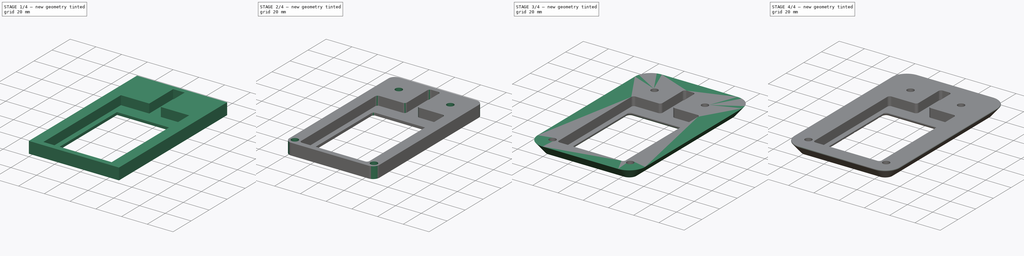
[diagram: build sequence overview — one tinted view per stage of 4, left to right]
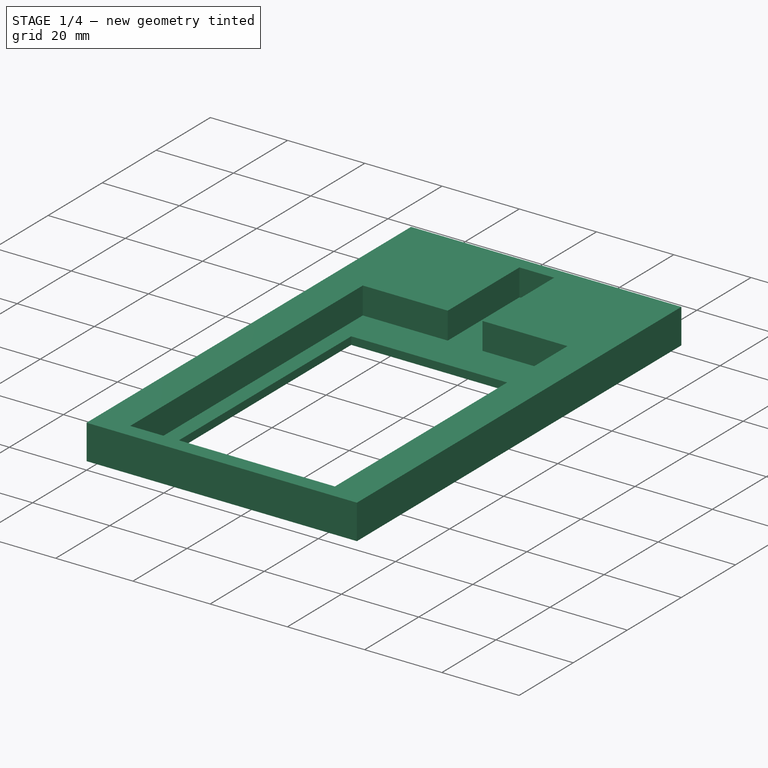
[diagram: stage 1 of 4 — iso view after this stage's code; geometry added in this stage tinted green]
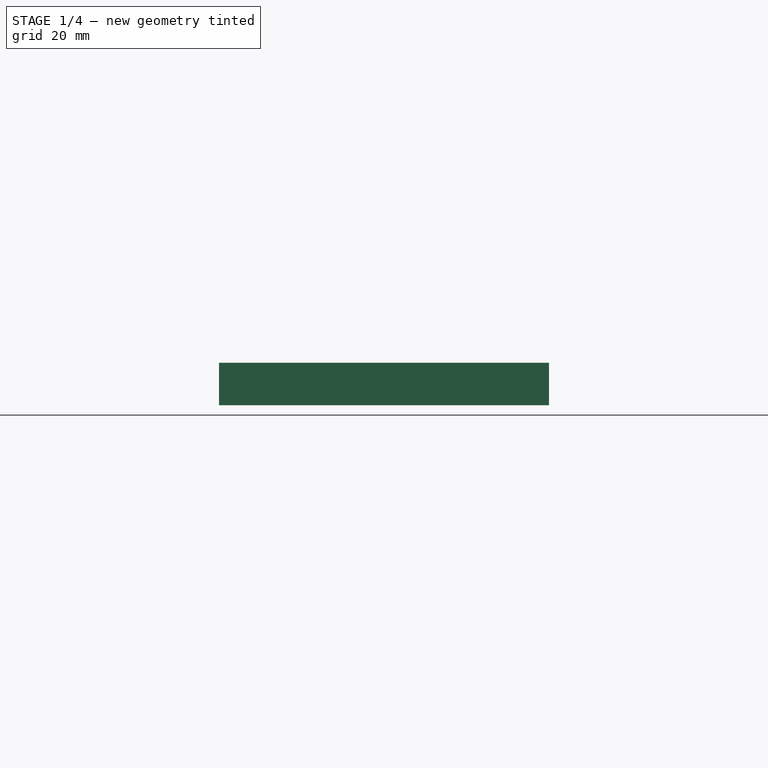
[diagram: stage 1 of 4 — front view after this stage's code; geometry added in this stage tinted green]
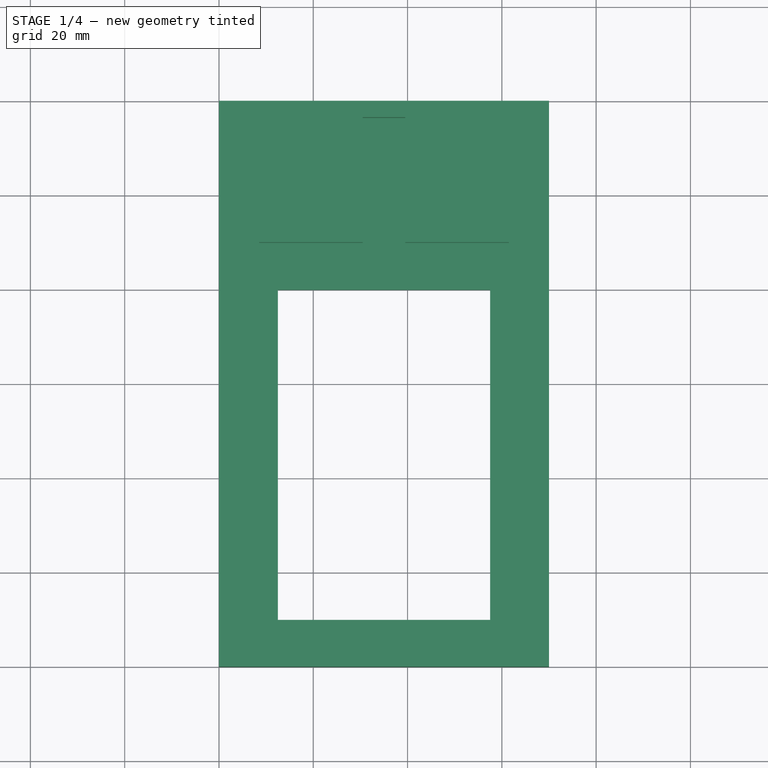
[diagram: stage 1 of 4 — top view after this stage's code; geometry added in this stage tinted green]
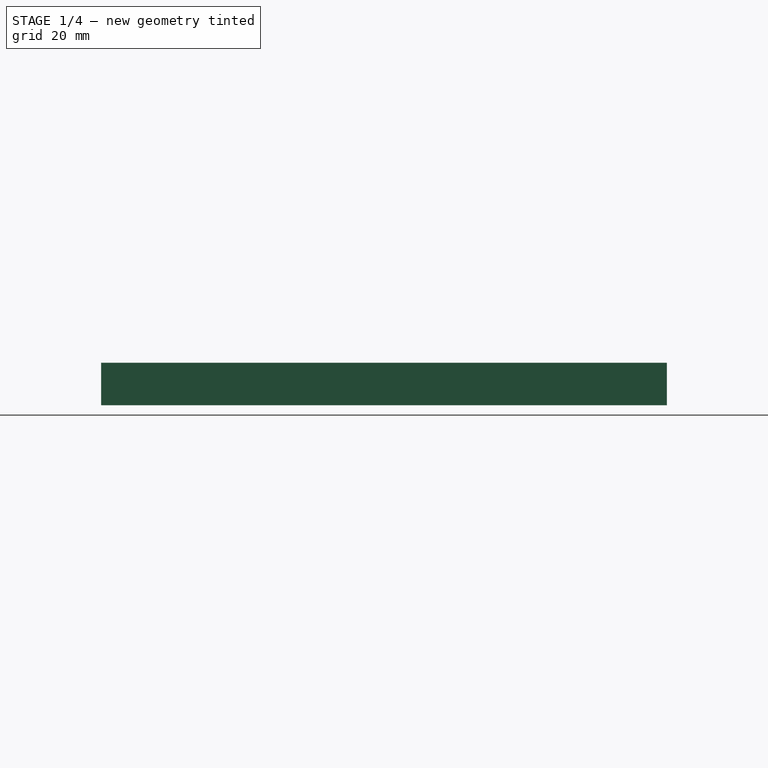
[diagram: stage 1 of 4 — right view after this stage's code; geometry added in this stage tinted green]
FCSTD DOCUMENT  (FreeCAD 0.17R11141 (Git))
Label: LED-remote-bezel-outside
License: All rights reserved
LicenseURL: http://en.wikipedia.org/wiki/All_rights_reserved
objects: Sketcher::SketchObject×4, PartDesign::Pocket×3, PartDesign::Fillet×3, PartDesign::Pad×1, PartDesign::Draft×1, PartDesign::Chamfer×1, PartDesign::LinearPattern×1, PartDesign::Body×1
note: 19 computed .brp shape members not serialized (recipe doc carries the construction recipe); baked Part::Feature solids carry a one-line shape summary decoded from their .brp

FEATURE [Sketcher::SketchObject] Sketch
  MapMode = 5
  Support = -> [XY_Plane]
  sketch-geometry (10):
    g0: LineSegment StartX=0 StartY=0 StartZ=0 EndX=70 EndY=0 EndZ=0
    g1: LineSegment StartX=70 StartY=0 StartZ=0 EndX=70 EndY=120 EndZ=0
    g2: LineSegment StartX=70 StartY=120 StartZ=0 EndX=0 EndY=120 EndZ=0
    g3: LineSegment StartX=0 StartY=120 StartZ=0 EndX=0 EndY=0 EndZ=0
    g4: LineSegment StartX=12.5 StartY=10 StartZ=0 EndX=57.5 EndY=10 EndZ=0
    g5: LineSegment StartX=57.5 StartY=10 StartZ=0 EndX=57.5 EndY=80 EndZ=0
    g6: LineSegment StartX=57.5 StartY=80 StartZ=0 EndX=12.5 EndY=80 EndZ=0
    g7: LineSegment StartX=12.5 StartY=80 StartZ=0 EndX=12.5 EndY=10 EndZ=0
    g8: LineSegment [constr] StartX=0 StartY=0 StartZ=0 EndX=12.5 EndY=10 EndZ=0
    g9: LineSegment [constr] StartX=57.5 StartY=10 StartZ=0 EndX=70 EndY=0 EndZ=0
  constraints (27):
    c: Coincident(g0,g1)
    c: Coincident(g1,g2)
    c: Coincident(g2,g3)
    c: Coincident(g3,g0)
    c: Horizontal(g0)
    c: Horizontal(g2)
    c: Vertical(g1)
    c: Vertical(g3)
    c: Coincident(g0,g-1)
    c: DistanceY(g3,g3) = 120
    c: DistanceX(g2,g2) = 70
    c: Coincident(g4,g5)
    c: Coincident(g5,g6)
    c: Coincident(g6,g7)
    c: Coincident(g7,g4)
    c: Horizontal(g4)
    c: Horizontal(g6)
    c: Vertical(g5)
    c: Vertical(g7)
    c: DistanceY(g-1,g4) = 10
    c: Coincident(g8,g-1)
    c: Coincident(g8,g4)
    c: Coincident(g9,g4)
    c: Coincident(g9,g0)
    c: Equal(g9,g8)
    c: DistanceX(g4,g4) = 45
    c: DistanceY(g7,g7) = 70
FEATURE [PartDesign::Pad] Pad
  Length = 9
  Length2 = 100
  Profile = -> Sketch
  Type = 0
FEATURE [Sketcher::SketchObject] Sketch001
  ExternalGeometry = -> [Pad]
  MapMode = 5
  Placement = pos=(0,0,9) rot=(0,0,1;0rad)
  Support = -> [Pad]
  sketch-geometry (12):
    g0: LineSegment StartX=8.5 StartY=4 StartZ=0 EndX=61.5 EndY=4 EndZ=0
    g1: LineSegment StartX=61.5 StartY=4 StartZ=0 EndX=61.5 EndY=90 EndZ=0
    g2: LineSegment [constr] StartX=61.5 StartY=90 StartZ=0 EndX=8.5 EndY=90 EndZ=0
    g3: LineSegment StartX=8.5 StartY=90 StartZ=0 EndX=8.5 EndY=4 EndZ=0
    g4: LineSegment [constr] StartX=30.5 StartY=90 StartZ=0 EndX=39.5 EndY=90 EndZ=0
    g5: LineSegment StartX=39.5 StartY=90 StartZ=0 EndX=39.5 EndY=116.5 EndZ=0
    g6: LineSegment StartX=39.5 StartY=116.5 StartZ=0 EndX=30.5 EndY=116.5 EndZ=0
    g7: LineSegment StartX=30.5 StartY=116.5 StartZ=0 EndX=30.5 EndY=90 EndZ=0
    g8: LineSegment StartX=39.5 StartY=90 StartZ=0 EndX=61.5 EndY=90 EndZ=0
    g9: LineSegment StartX=30.5 StartY=90 StartZ=0 EndX=8.5 EndY=90 EndZ=0
    g10: LineSegment [constr] StartX=0 StartY=0 StartZ=0 EndX=8.5 EndY=4 EndZ=0
    g11: LineSegment [constr] StartX=61.5 StartY=4 StartZ=0 EndX=70 EndY=0 EndZ=0
  constraints (32):
    c: Coincident(g0,g1)
    c: Coincident(g1,g2)
    c: Coincident(g2,g3)
    c: Coincident(g3,g0)
    c: Horizontal(g0)
    c: Horizontal(g2)
    c: Vertical(g1)
    c: Vertical(g3)
    c: Coincident(g4,g5)
    c: Coincident(g5,g6)
    c: Coincident(g6,g7)
    c: Coincident(g7,g4)
    c: Horizontal(g4)
    c: Horizontal(g6)
    c: Vertical(g5)
    c: Vertical(g7)
    c: PointOnObject(g4,g2)
    c: Coincident(g8,g4)
    c: Coincident(g8,g1)
    c: Coincident(g9,g4)
    c: Coincident(g9,g2)
    c: Equal(g8,g9)
    c: Coincident(g10,g-1)
    c: Coincident(g10,g0)
    c: Coincident(g11,g0)
    c: Coincident(g11,g-7)
    c: Equal(g11,g10)
    c: DistanceX(g0,g0) = 53
    c: DistanceY(g3,g3) = 86
    c: DistanceY(g10,g10) = 4
    c: DistanceX(g6,g6) = 9
    c: DistanceY(g7,g7) = 26.5
FEATURE [PartDesign::Pocket] Pocket
  BaseFeature = -> Pad
  Length = 7
  Profile = -> Sketch001
  Type = 0
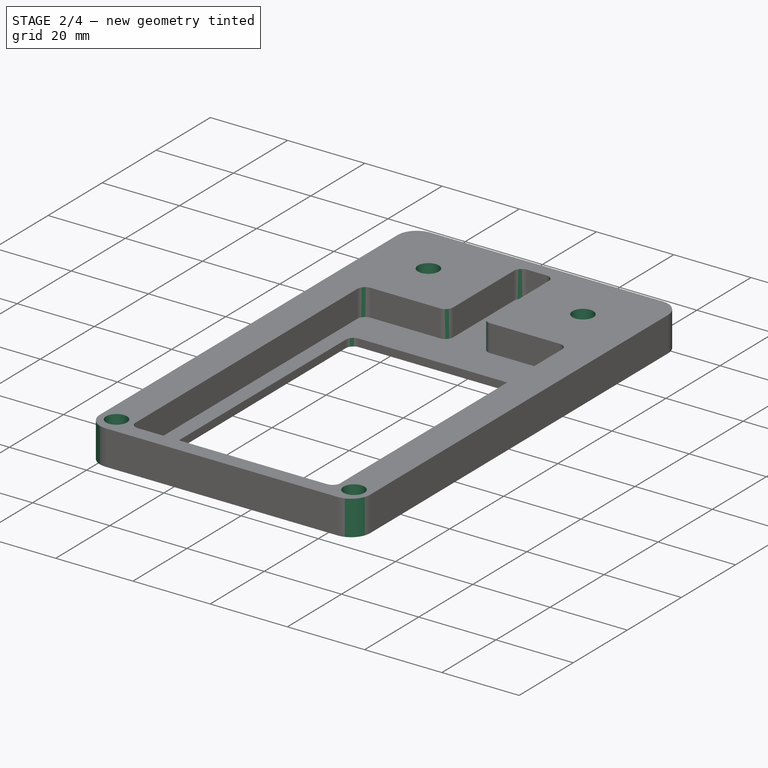
[diagram: stage 2 of 4 — iso view after this stage's code; geometry added in this stage tinted green]
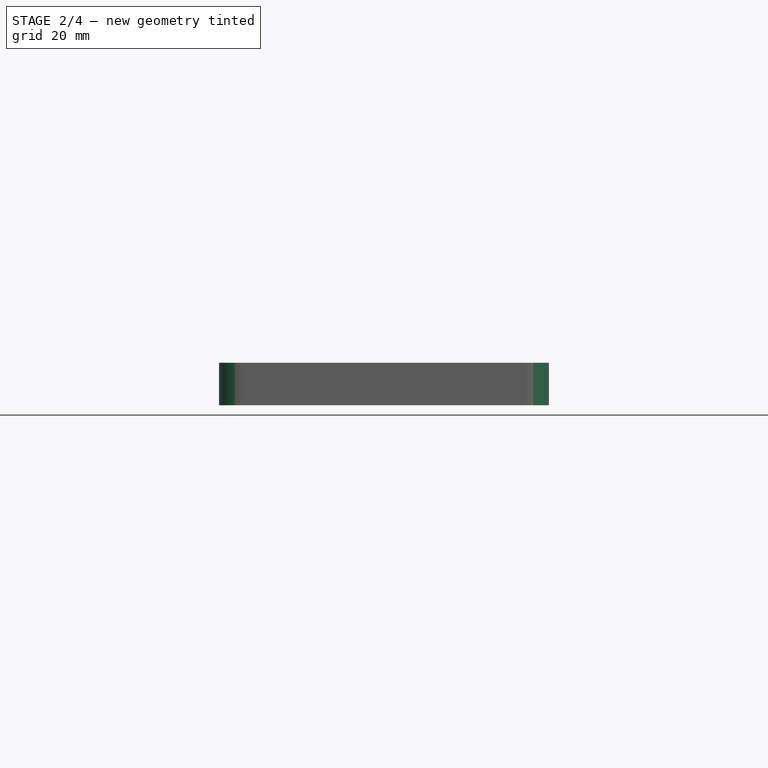
[diagram: stage 2 of 4 — front view after this stage's code; geometry added in this stage tinted green]
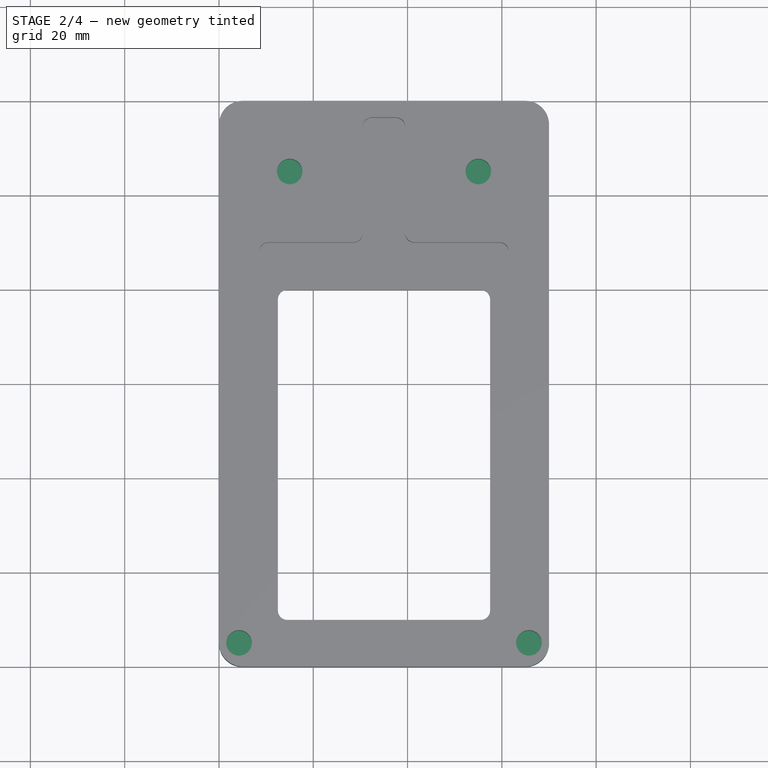
[diagram: stage 2 of 4 — top view after this stage's code; geometry added in this stage tinted green]
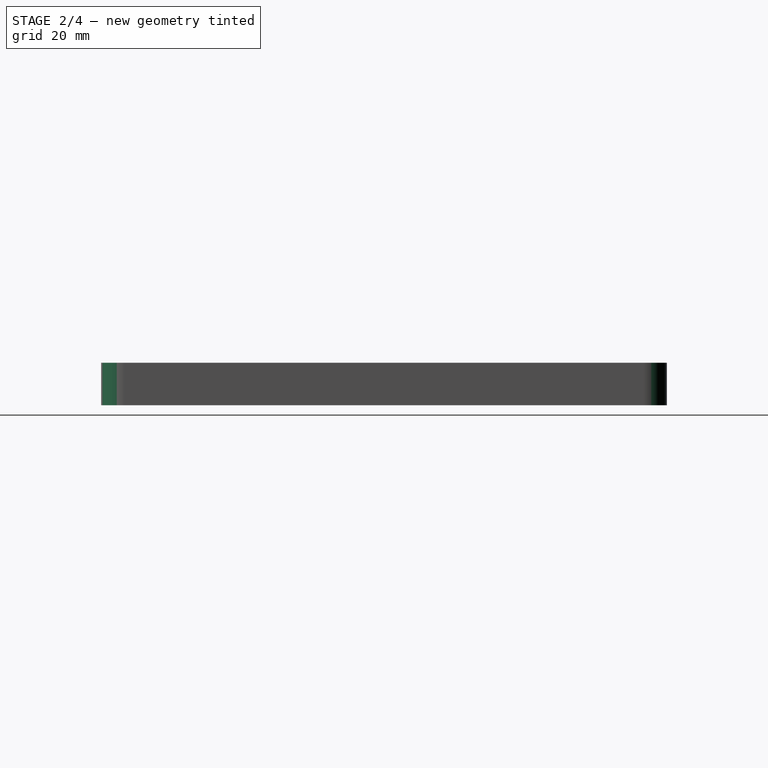
[diagram: stage 2 of 4 — right view after this stage's code; geometry added in this stage tinted green]
FEATURE [Sketcher::SketchObject] Sketch002
  ExternalGeometry = -> [Pocket]
  MapMode = 5
  Placement = pos=(0,0,9) rot=(0,0,1;0rad)
  Support = -> [Pocket]
  sketch-geometry (10):
    g0: LineSegment [constr] StartX=15 StartY=105 StartZ=0 EndX=55 EndY=105 EndZ=0
    g1: LineSegment [constr] StartX=55 StartY=105 StartZ=0 EndX=65.75 EndY=5 EndZ=0
    g2: LineSegment [constr] StartX=65.75 StartY=5 StartZ=0 EndX=4.25 EndY=5 EndZ=0
    g3: LineSegment [constr] StartX=4.25 StartY=5 StartZ=0 EndX=15 EndY=105 EndZ=0
    g4: Circle CenterX=65.75 CenterY=5 CenterZ=0 NormalX=0 NormalY=0 NormalZ=1 Radius=2.7
    g5: Circle CenterX=4.25 CenterY=5 CenterZ=0 NormalX=0 NormalY=0 NormalZ=1 Radius=2.7
    g6: Circle CenterX=15 CenterY=105 CenterZ=0 NormalX=0 NormalY=0 NormalZ=1 Radius=2.7
    g7: Circle CenterX=55 CenterY=105 CenterZ=0 NormalX=0 NormalY=0 NormalZ=1 Radius=2.7
    g8: LineSegment [constr] StartX=65.75 StartY=5 StartZ=0 EndX=70 EndY=0 EndZ=0
    g9: LineSegment [constr] StartX=0 StartY=0 StartZ=0 EndX=4.25 EndY=5 EndZ=0
  constraints (24):
    c: Coincident(g0,g1)
    c: Coincident(g1,g2)
    c: Coincident(g2,g3)
    c: Coincident(g3,g0)
    c: Horizontal(g0)
    c: Horizontal(g2)
    c: Coincident(g4,g1)
    c: Coincident(g5,g2)
    c: Coincident(g6,g0)
    c: Coincident(g7,g0)
    c: Equal(g3,g1)
    c: Coincident(g8,g1)
    c: Coincident(g8,g-3)
    c: Coincident(g9,g-1)
    c: Coincident(g9,g2)
    c: Equal(g9,g8)
    c: Equal(g7,g4)
    c: Equal(g4,g5)
    c: Equal(g5,g6)
    c: Radius(g7) = 2.7
    c: DistanceX(g0,g0) = 40
    c: DistanceY(g3,g3) = 100
    c: DistanceY(g9,g9) = 5
    c: DistanceX(g2,g2) = 61.5
FEATURE [PartDesign::Pocket] Pocket001
  BaseFeature = -> Pocket
  Length = 7
  Profile = -> Sketch002
  Type = 0
FEATURE [PartDesign::Fillet] Fillet
  Base = -> Pocket001 [Edge1,Edge2,Edge8,Edge5]
  BaseFeature = -> Pocket001
  Radius = 5
FEATURE [PartDesign::Fillet] Fillet001
  Base = -> Fillet [Edge61,Edge65,Edge47,Edge41,Edge43,Edge57,Edge53,Edge58,Edge51,Edge54,Edge45,Edge63]
  BaseFeature = -> Fillet
  Radius = 2
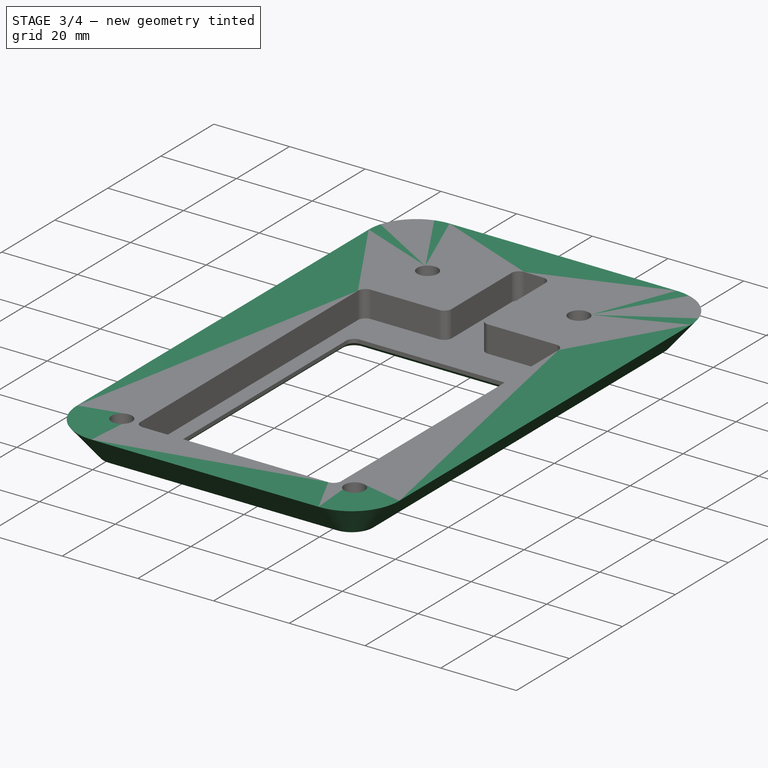
[diagram: stage 3 of 4 — iso view after this stage's code; geometry added in this stage tinted green]
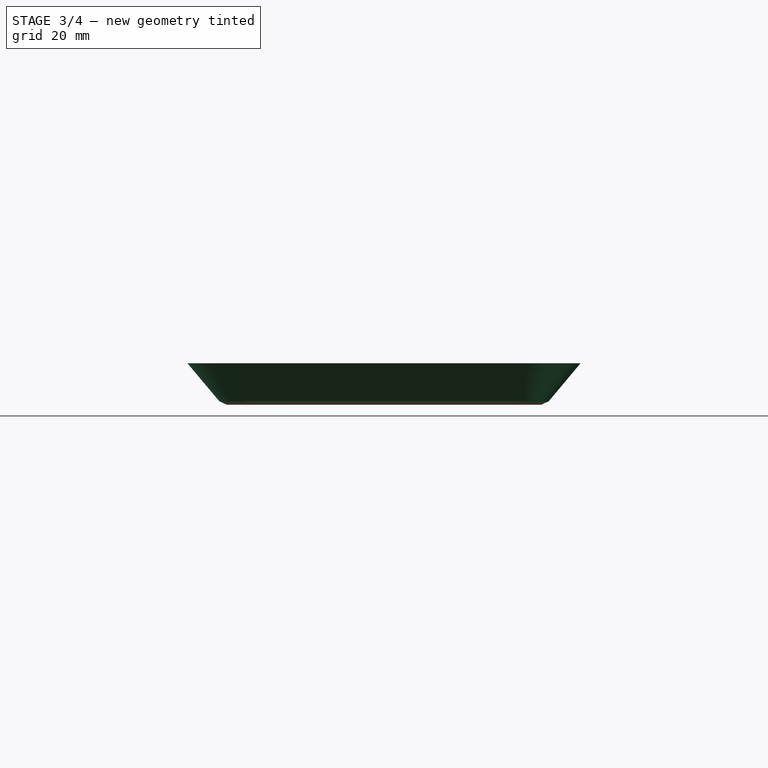
[diagram: stage 3 of 4 — front view after this stage's code; geometry added in this stage tinted green]
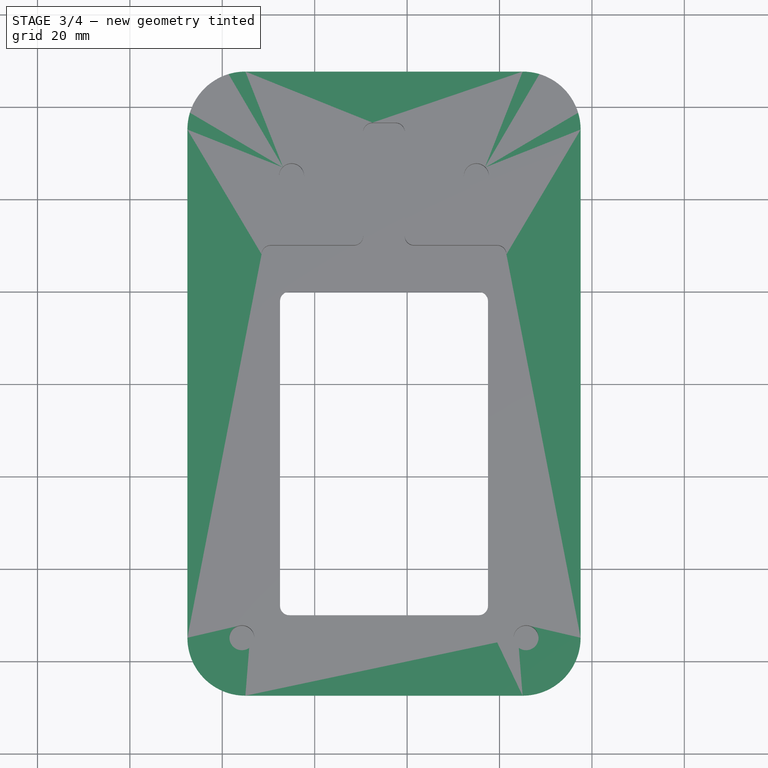
[diagram: stage 3 of 4 — top view after this stage's code; geometry added in this stage tinted green]
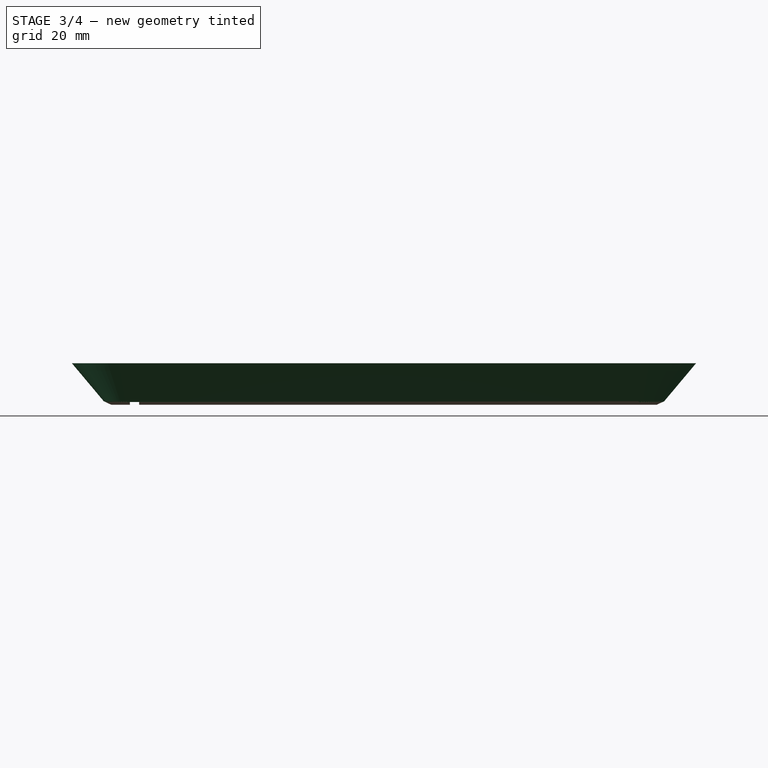
[diagram: stage 3 of 4 — right view after this stage's code; geometry added in this stage tinted green]
FEATURE [PartDesign::Draft] Draft
  Angle = 40
  Base = -> Fillet001 [Face17]
  BaseFeature = -> Fillet001
  NeutralPlane = -> Fillet001 [Face1]
  PullDirection = -> Fillet001 [Edge42]
  Reversed = true
FEATURE [PartDesign::Chamfer] Chamfer
  Base = -> Draft [Face1]
  BaseFeature = -> Draft
  Size = 1
FEATURE [Sketcher::SketchObject] Sketch003
  MapMode = 5
  Placement = pos=(0,0,0) rot=(1,0,0;3.14159rad)
  Support = -> [Chamfer]
  sketch-geometry (8):
    g0: LineSegment StartX=0 StartY=-7 StartZ=0 EndX=75 EndY=-7 EndZ=0
    g1: LineSegment StartX=75 StartY=-7 StartZ=0 EndX=75 EndY=-5 EndZ=0
    g2: LineSegment StartX=75 StartY=-5 StartZ=0 EndX=0 EndY=-5 EndZ=0
    g3: LineSegment [constr] StartX=0 StartY=-5 StartZ=0 EndX=0 EndY=-7 EndZ=0
    g4: LineSegment StartX=0 StartY=-5 StartZ=0 EndX=-5 EndY=-5 EndZ=0
    g5: LineSegment StartX=-5 StartY=-5 StartZ=0 EndX=-5 EndY=-7 EndZ=0
    g6: LineSegment StartX=-5 StartY=-7 StartZ=0 EndX=0 EndY=-7 EndZ=0
    g7: LineSegment [constr] StartX=0 StartY=-7 StartZ=0 EndX=0 EndY=-5 EndZ=0
  constraints (23):
    c: Coincident(g0,g1)
    c: Coincident(g1,g2)
    c: Coincident(g2,g3)
    c: Coincident(g3,g0)
    c: Horizontal(g0)
    c: Horizontal(g2)
    c: Vertical(g1)
    c: Vertical(g3)
    c: PointOnObject(g0,g-2)
    c: DistanceY(g1,g1) = 2
    c: DistanceY(g1) = -5
    c: Coincident(g4,g5)
    c: Coincident(g5,g6)
    c: Coincident(g6,g7)
    c: Coincident(g7,g4)
    c: Horizontal(g4)
    c: Horizontal(g6)
    c: Vertical(g5)
    c: Vertical(g7)
    c: Coincident(g4,g2)
    c: Coincident(g0,g6)
    c: DistanceX(g4,g4) = 5
    c: DistanceX(g2,g2) = 75
FEATURE [PartDesign::Pocket] Pocket002
  BaseFeature = -> Chamfer
  Length = 0.6
  Profile = -> Sketch003
  Type = 0
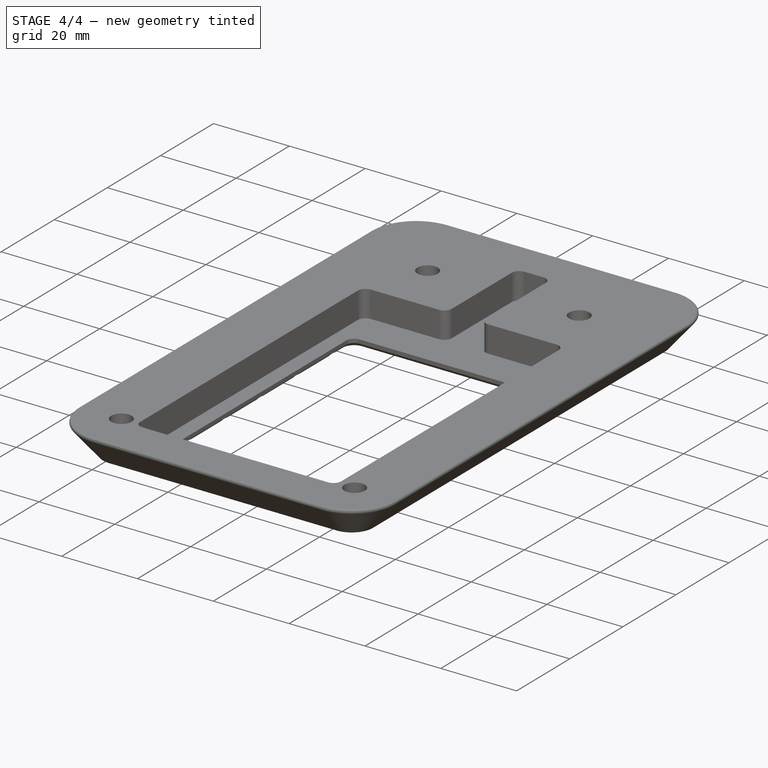
[diagram: stage 4 of 4 — iso view after this stage's code; geometry added in this stage tinted green]
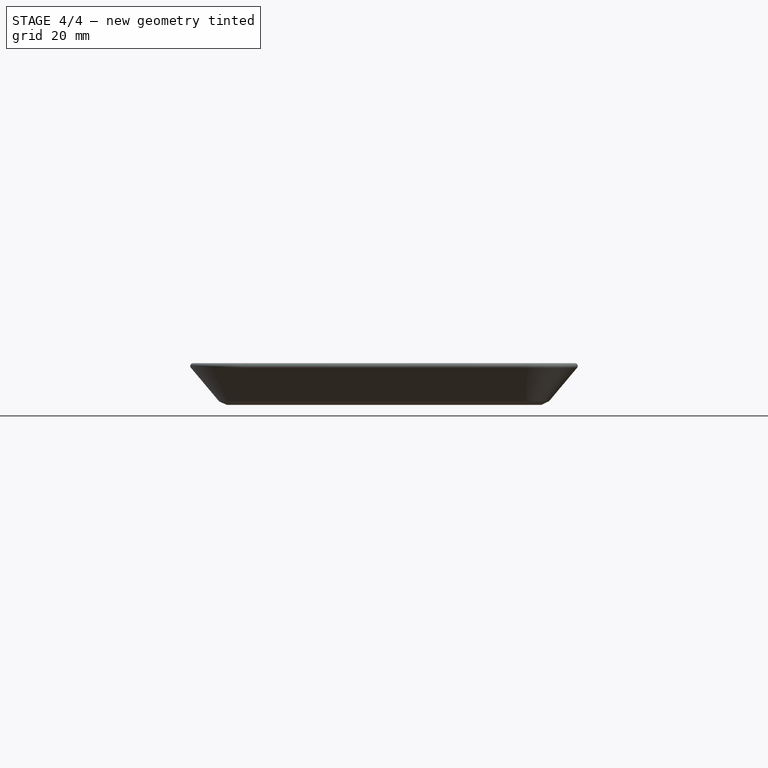
[diagram: stage 4 of 4 — front view after this stage's code; geometry added in this stage tinted green]
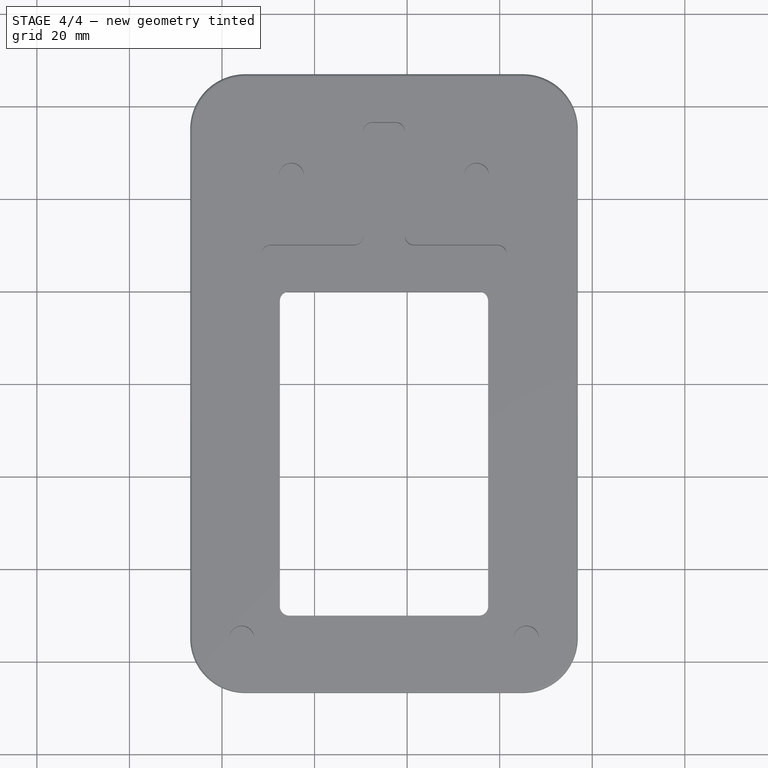
[diagram: stage 4 of 4 — top view after this stage's code; geometry added in this stage tinted green]
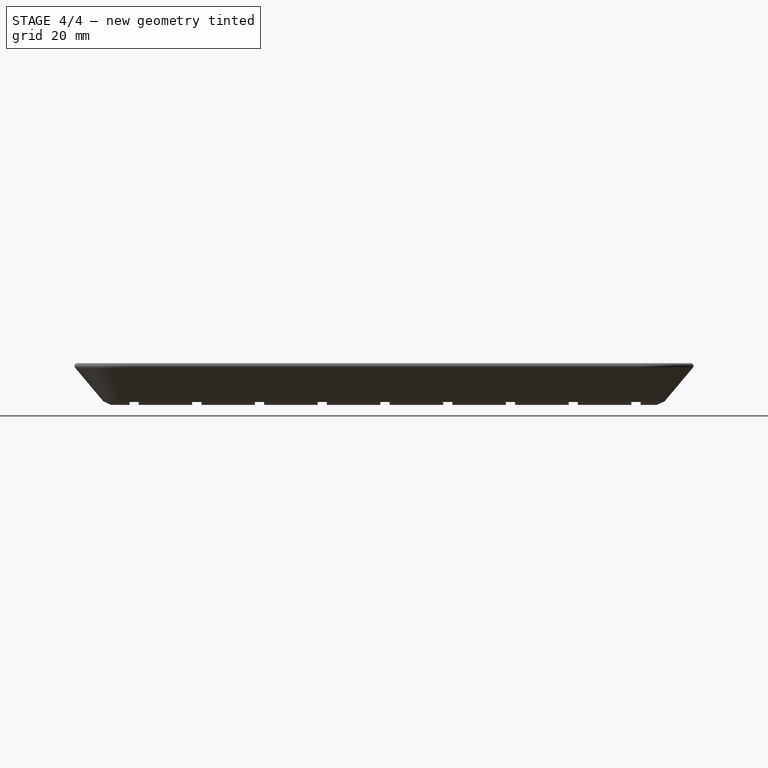
[diagram: stage 4 of 4 — right view after this stage's code; geometry added in this stage tinted green]
FEATURE [PartDesign::LinearPattern] LinearPattern
  BaseFeature = -> Pocket002
  Direction = -> Y_Axis
  Length = 122
  Occurrences = 10
  Originals = -> [Pocket002]
FEATURE [PartDesign::Fillet] Fillet002
  Base = -> LinearPattern [Edge235]
  BaseFeature = -> LinearPattern
  Radius = 0.6
FEATURE [PartDesign::Body] Body
  Group = -> [Sketch,Pad,Sketch001,Pocket,Sketch002,Pocket001,Fillet,Fillet001,Draft,Chamfer,Sketch003,Pocket002,LinearPattern,Fillet002]
  Origin = -> BodyOrigin
  Tip = -> Fillet002
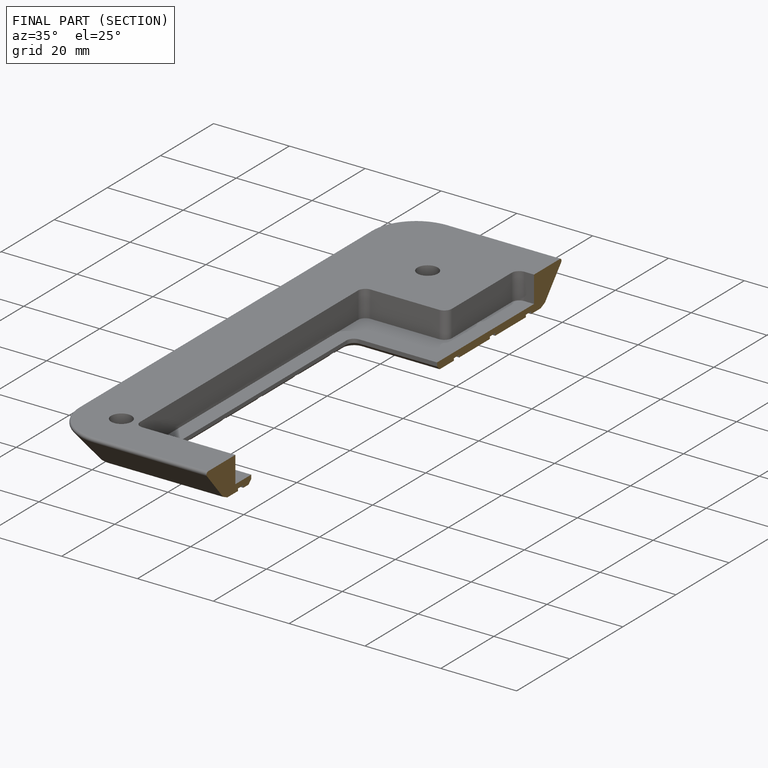
[diagram: finished part — half-section view (interior)]
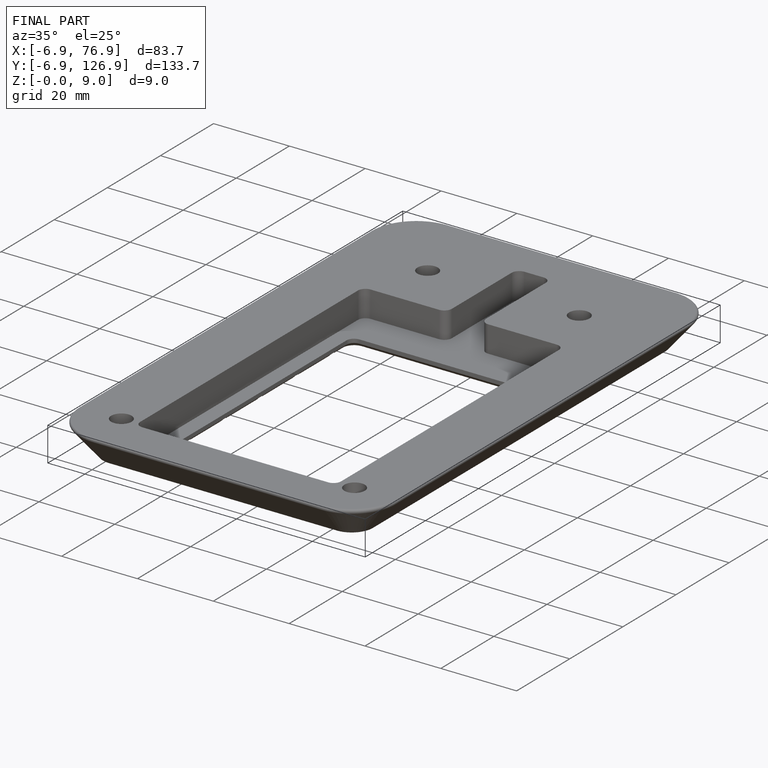
[diagram: finished part — iso view with bounding-box wireframe]
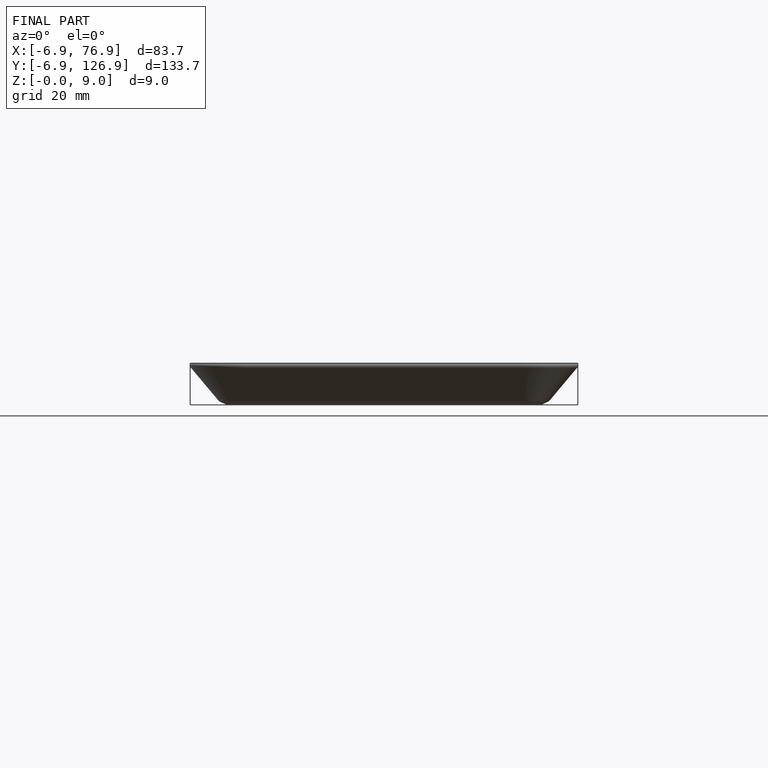
[diagram: finished part — front view with bounding-box wireframe]
